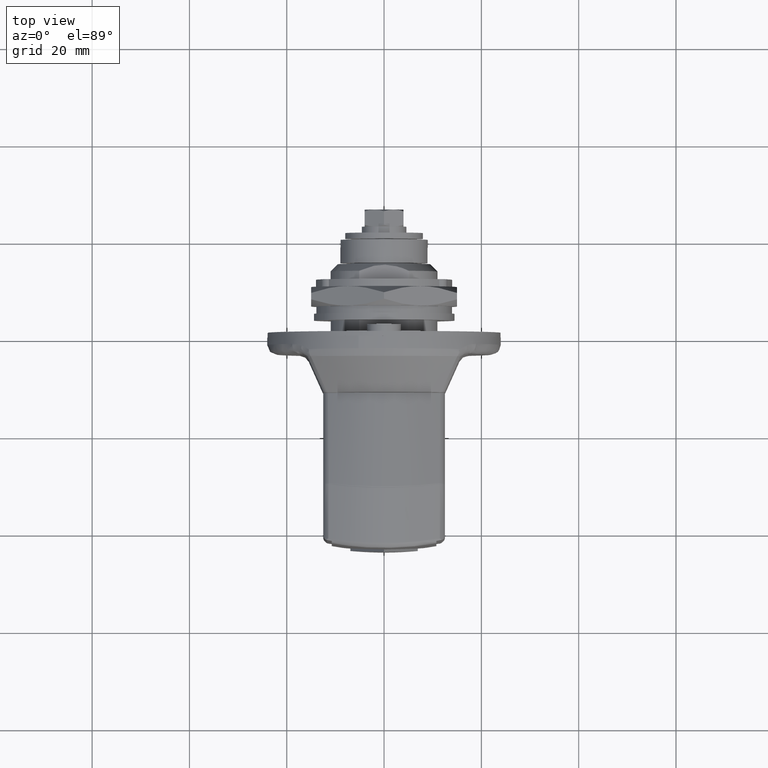
[diagram: clean part render]
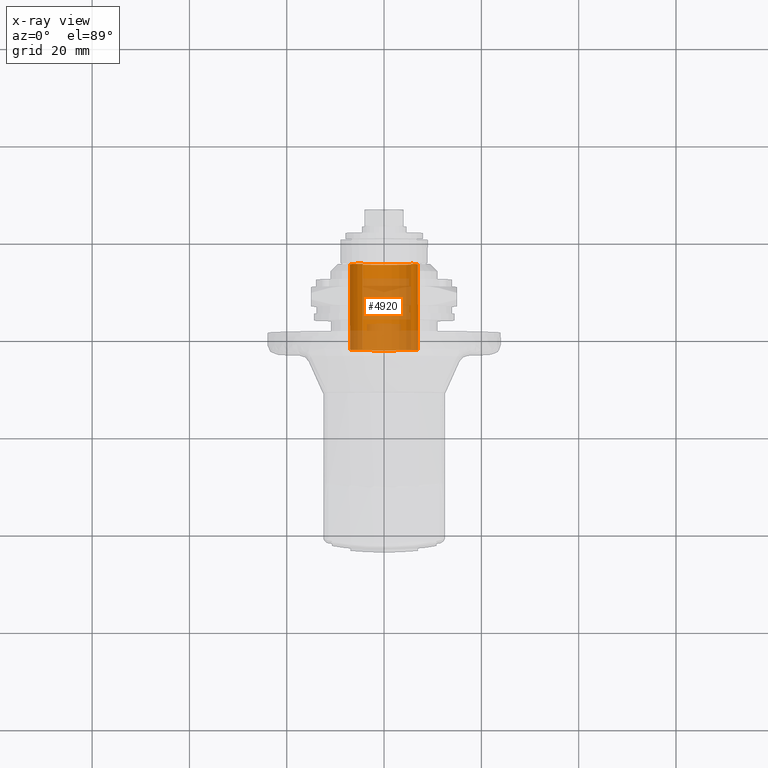
[diagram: x-ray — body ghosted, one internal face saturated and labeled with its STEP entity id]
A machine part, top view, then the same camera in x-ray: the body is ghosted and one INTERNAL B-rep face — a face not visible from any outside direction — is saturated and labeled: STEP entity #4920.
In plain terms, the highlighted face is a freeform B-spline surface patch.
Its self-contained STEP definition (entity closure, byte-faithful):
#4786=CARTESIAN_POINT('',(14.540000004396850,4.357602456463335,5.478257097966896));
#4787=CARTESIAN_POINT('',(14.540000004396859,9.835859554430231,1.120654641503561));
#4788=CARTESIAN_POINT('',(14.540000004396850,5.478257097966896,-4.357602456463335));
#4789=CARTESIAN_POINT('',(14.540000004396859,1.120654641503561,-9.835859554430231));
#4790=CARTESIAN_POINT('',(14.540000004396850,-4.357602456463335,-5.478257097966896));
#4791=CARTESIAN_POINT('',(14.540000004396859,-9.835859554430231,-1.120654641503561));
#4792=CARTESIAN_POINT('',(14.540000004396861,-5.478257097966896,4.357602456463335));
#4793=CARTESIAN_POINT('',(-3.951000000109927,4.357602456463335,5.478257097966896));
#4794=CARTESIAN_POINT('',(-3.951000000109928,9.835859554430231,1.120654641503561));
#4795=CARTESIAN_POINT('',(-3.951000000109928,5.478257097966896,-4.357602456463335));
#4796=CARTESIAN_POINT('',(-3.951000000109928,1.120654641503561,-9.835859554430231));
#4797=CARTESIAN_POINT('',(-3.951000000109927,-4.357602456463335,-5.478257097966896));
#4798=CARTESIAN_POINT('',(-3.951000000109926,-9.835859554430231,-1.120654641503561));
#4799=CARTESIAN_POINT('',(-3.951000000109926,-5.478257097966896,4.357602456463335));
#4807=(BOUNDED_SURFACE()B_SPLINE_SURFACE(2,1,((#4786,#4793),(#4787,#4794),(#4788,#4795),(#4789,#4796),(#4790,#4797),(#4791,#4798),(#4792,#4799)),.UNSPECIFIED.,.F.,.F.,.U.)B_SPLINE_SURFACE_WITH_KNOTS((3,2,2,3),(2,2),(0.0,11.597979746446660,23.195959492893319,34.793939239339977),(0.0,18.491000004506780),.UNSPECIFIED.)GEOMETRIC_REPRESENTATION_ITEM()RATIONAL_B_SPLINE_SURFACE(((1.0,1.0),(0.707106781186548,0.707106781186548),(1.0,1.0),(0.707106781186548,0.707106781186548),(1.0,1.0),(0.707106781186548,0.707106781186548),(1.0,1.0)))REPRESENTATION_ITEM('')SURFACE());
#4808=CARTESIAN_POINT('',(14.100000000932530,4.357602456465251,5.478257097965438));
#4809=VERTEX_POINT('',#4808);
#4810=CARTESIAN_POINT('',(14.100000004289610,6.999999999999998,5.986765E-017));
#4811=VERTEX_POINT('',#4810);
#4812=CARTESIAN_POINT('',(14.100000000932527,4.357602456465251,5.478257097965440));
#4813=CARTESIAN_POINT('',(14.100000002220554,7.000000000000289,3.376399185720055));
#4814=CARTESIAN_POINT('',(14.100000004289601,6.999999999999996,5.986765E-017));
#4822=(BOUNDED_CURVE()B_SPLINE_CURVE(2,(#4812,#4813,#4814),.UNSPECIFIED.,.F.,.U.)B_SPLINE_CURVE_WITH_KNOTS((3,3),(0.107863877391551,0.250000000000015),.UNSPECIFIED.)CURVE()GEOMETRIC_REPRESENTATION_ITEM()RATIONAL_B_SPLINE_CURVE((0.856305618644036,0.833477174158189,1.000000000000036))REPRESENTATION_ITEM(''));
#4823=EDGE_CURVE('',#4809,#4811,#4822,.T.);
#4824=ORIENTED_EDGE('',*,*,#4823,.T.);
#4825=CARTESIAN_POINT('',(14.100000000000000,0.0,-7.0));
#4826=VERTEX_POINT('',#4825);
#4827=CARTESIAN_POINT('',(14.100000004289607,6.999999999999998,5.986765E-017));
#4828=CARTESIAN_POINT('',(14.100000000000001,6.999999999999402,-6.999999999999999));
#4829=CARTESIAN_POINT('',(14.100000000000000,0.0,-7.0));
#4837=(BOUNDED_CURVE()B_SPLINE_CURVE(2,(#4827,#4828,#4829),.UNSPECIFIED.,.F.,.U.)B_SPLINE_CURVE_WITH_KNOTS((3,3),(0.250000000000015,0.500000000000000),.UNSPECIFIED.)CURVE()GEOMETRIC_REPRESENTATION_ITEM()RATIONAL_B_SPLINE_CURVE((0.999999999999965,0.707106781186565,1.0))REPRESENTATION_ITEM(''));
#4838=EDGE_CURVE('',#4811,#4826,#4837,.T.);
#4839=ORIENTED_EDGE('',*,*,#4838,.T.);
#4840=CARTESIAN_POINT('',(14.100000004289610,-6.953181471495570,-0.808249605289517));
#4841=VERTEX_POINT('',#4840);
#4842=CARTESIAN_POINT('',(14.100000000000000,0.0,-7.0));
#4843=CARTESIAN_POINT('',(14.100000000000003,-6.233441905788573,-7.0));
#4844=CARTESIAN_POINT('',(14.100000004289614,-6.953181471495570,-0.808249605289517));
#4852=(BOUNDED_CURVE()B_SPLINE_CURVE(2,(#4842,#4843,#4844),.UNSPECIFIED.,.F.,.U.)B_SPLINE_CURVE_WITH_KNOTS((3,3),(0.500000000000000,0.729999999999999),.UNSPECIFIED.)CURVE()GEOMETRIC_REPRESENTATION_ITEM()RATIONAL_B_SPLINE_CURVE((1.0,0.730538238691625,0.956886118190658))REPRESENTATION_ITEM(''));
#4853=EDGE_CURVE('',#4826,#4841,#4852,.T.);
#4854=ORIENTED_EDGE('',*,*,#4853,.T.);
#4855=CARTESIAN_POINT('',(14.100000000000000,-5.478257097965397,4.357602456465222));
#4856=VERTEX_POINT('',#4855);
#4857=CARTESIAN_POINT('',(14.100000004289610,-6.953181471495570,-0.808249605289517));
#4858=CARTESIAN_POINT('',(14.100000000000005,-7.0,-0.405480803685139));
#4859=CARTESIAN_POINT('',(14.100000000000000,-7.0,0.0));
#4860=CARTESIAN_POINT('',(14.099999999999996,-7.0,2.444509433953483));
#4861=CARTESIAN_POINT('',(14.100000000000001,-5.478257097965397,4.357602456465222));
#4869=(BOUNDED_CURVE()B_SPLINE_CURVE(2,(#4857,#4858,#4859,#4860,#4861),.UNSPECIFIED.,.F.,.U.)B_SPLINE_CURVE_WITH_KNOTS((3,2,3),(0.730000000000000,0.750000000000000,0.857863877391550),.UNSPECIFIED.)CURVE()GEOMETRIC_REPRESENTATION_ITEM()RATIONAL_B_SPLINE_CURVE((0.956886118190660,0.976568542494924,1.0,0.873629607028358,0.856305618644037))REPRESENTATION_ITEM(''));
#4870=EDGE_CURVE('',#4841,#4856,#4869,.T.);
#4871=ORIENTED_EDGE('',*,*,#4870,.T.);
#4872=CARTESIAN_POINT('',(-3.500000000000002,-5.478263302634437,4.357594656104383));
#4873=VERTEX_POINT('',#4872);
#4874=CARTESIAN_POINT('',(14.100000000000000,-5.478257097965397,4.357602456465222));
#4875=CARTESIAN_POINT('',(-3.500000000000002,-5.478263302634437,4.357594656104383));
#4876=QUASI_UNIFORM_CURVE('',1,(#4874,#4875),.UNSPECIFIED.,.F.,.U.);
#4877=EDGE_CURVE('',#4856,#4873,#4876,.T.);
#4878=ORIENTED_EDGE('',*,*,#4877,.T.);
#4879=CARTESIAN_POINT('',(-3.500000000000000,0.0,-7.0));
#4880=VERTEX_POINT('',#4879);
#4881=CARTESIAN_POINT('',(-3.500000000000000,0.0,-7.0));
#4882=CARTESIAN_POINT('',(-3.500000000000000,-6.999999999999999,-6.999999999999999));
#4883=CARTESIAN_POINT('',(-3.500000000000000,-7.0,0.0));
#4884=CARTESIAN_POINT('',(-3.500000000000000,-6.999999999999999,2.444503842638754));
#4885=CARTESIAN_POINT('',(-3.500000000000002,-5.478263302634438,4.357594656104383));
#4893=(BOUNDED_CURVE()B_SPLINE_CURVE(2,(#4881,#4882,#4883,#4884,#4885),.UNSPECIFIED.,.F.,.U.)B_SPLINE_CURVE_WITH_KNOTS((3,2,3),(0.500000000000000,0.750000000000000,0.857863661852622),.UNSPECIFIED.)CURVE()GEOMETRIC_REPRESENTATION_ITEM()RATIONAL_B_SPLINE_CURVE((1.0,0.707106781186547,1.0,0.873629859547919,0.856305687879771))REPRESENTATION_ITEM(''));
#4894=EDGE_CURVE('',#4880,#4873,#4893,.T.);
#4895=ORIENTED_EDGE('',*,*,#4894,.F.);
#4896=CARTESIAN_POINT('',(-3.500000000000000,4.357594764996271,5.478263216018419));
#4897=VERTEX_POINT('',#4896);
#4898=CARTESIAN_POINT('',(-3.500000000000001,4.357594764996271,5.478263216018420));
#4899=CARTESIAN_POINT('',(-3.500000000000000,6.999999999999999,3.376405242977941));
#4900=CARTESIAN_POINT('',(-3.500000000000000,7.0,0.0));
#4901=CARTESIAN_POINT('',(-3.500000000000000,6.999999999999999,-6.999999999999999));
#4902=CARTESIAN_POINT('',(-3.500000000000000,0.0,-7.0));
#4910=(BOUNDED_CURVE()B_SPLINE_CURVE(2,(#4898,#4899,#4900,#4901,#4902),.UNSPECIFIED.,.F.,.U.)B_SPLINE_CURVE_WITH_KNOTS((3,2,3),(0.107863664861510,0.250000000000000,0.500000000000000),.UNSPECIFIED.)CURVE()GEOMETRIC_REPRESENTATION_ITEM()RATIONAL_B_SPLINE_CURVE((0.856305686913245,0.833476925163759,1.0,0.707106781186547,1.0))REPRESENTATION_ITEM(''));
#4911=EDGE_CURVE('',#4897,#4880,#4910,.T.);
#4912=ORIENTED_EDGE('',*,*,#4911,.F.);
#4913=CARTESIAN_POINT('',(14.100000000932530,4.357602456465251,5.478257097965438));
#4914=CARTESIAN_POINT('',(-3.500000000000000,4.357594764996271,5.478263216018419));
#4915=QUASI_UNIFORM_CURVE('',1,(#4913,#4914),.UNSPECIFIED.,.F.,.U.);
#4916=EDGE_CURVE('',#4809,#4897,#4915,.T.);
#4917=ORIENTED_EDGE('',*,*,#4916,.F.);
#4918=EDGE_LOOP('',(#4824,#4839,#4854,#4871,#4878,#4895,#4912,#4917));
#4919=FACE_OUTER_BOUND('',#4918,.T.);
#4920=ADVANCED_FACE('',(#4919),#4807,.T.);